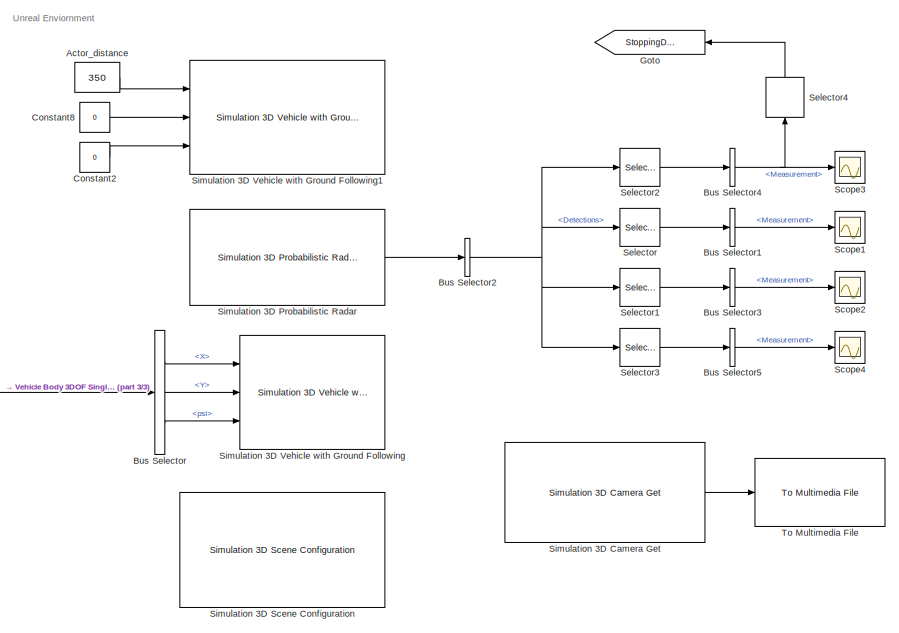
[diagram: root canvas - part 1/3, right side, full height]
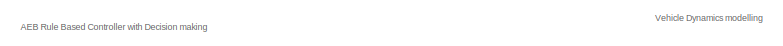
[diagram: root canvas - part 2/3, top left region]
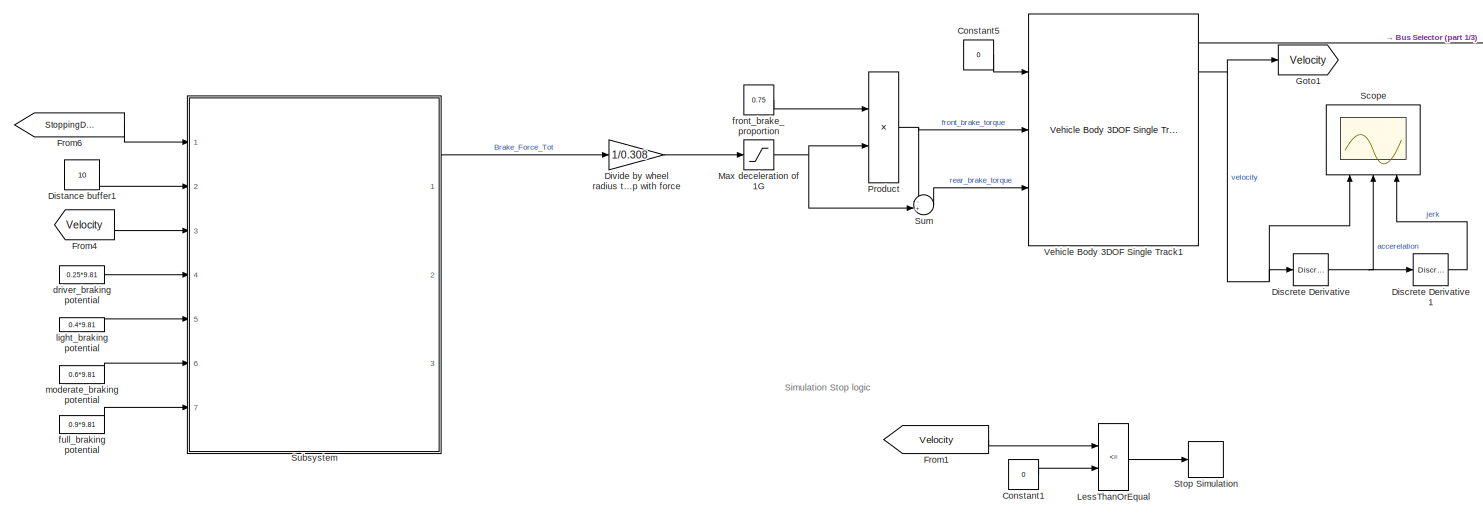
[diagram: root canvas - part 3/3, center side, full height]
MODEL slx_f537fb9c1e2f
KIND model
CONFIG AbsTol = auto
CONFIG EnableMultiTasking = off
CONFIG FixedStep = simtime
CONFIG InitFcn = clear all \n\n% These are the starting values \ninitial_stopping_distance = 350; % set the stopping distance in m (6.368 and 11 is max deccel -9.5)\ninitial_velocity = 37.77; % set the initial velocity in m/s\nroad_grade = 0; %set road grade in degrees\nsampletime = 0.01; %set the sample time of the controller \nTs = sampletime;\nsimtime = sampletime; %simulation set\n\ninitialdeccelcalc = -(initial_velocit...<+35ch>
CONFIG MaxStep = auto
CONFIG MinStep = auto
CONFIG RelTol = 1e-3
CONFIG SampleTimeConstraint = Unconstrained
CONFIG SolverName = ode4
CONFIG StartTime = 0.0
CONFIG StopTime = 20
BLOCK [Constant] Actor_distance
  NameLocation = top
  Value = 350
BLOCK [BusSelector] Bus Selector
  OutputSignals = InertFrm.Cg.Disp.X,InertFrm.Cg.Disp.Y,InertFrm.Cg.Ang.psi
  Ports = [1, 3]
BLOCK [BusSelector] Bus Selector1
  OutputSignals = Measurement
  Ports = [1, 1]
BLOCK [BusSelector] Bus Selector2
  OutputSignals = Detections
  Ports = [1, 1]
BLOCK [BusSelector] Bus Selector3
  OutputSignals = Measurement
  Ports = [1, 1]
BLOCK [BusSelector] Bus Selector4
  OutputSignals = Measurement
  Ports = [1, 1]
BLOCK [BusSelector] Bus Selector5
  OutputSignals = Measurement
  Ports = [1, 1]
BLOCK [Constant] Constant1
  Value = 0
BLOCK [Constant] Constant2
  Value = 0
BLOCK [Constant] Constant5
  Value = 0
BLOCK [Constant] Constant8
  Value = 0
BLOCK [Reference] Discrete Derivative  REF=simulink/Discrete/Discrete Derivative
  Ports = [1, 1]
  SourceBlock = simulink/Discrete/Discrete Derivative
  SourceProductBaseCode = SL
  SourceType = Discrete Derivative
BLOCK [Reference] Discrete Derivative1  REF=simulink/Discrete/Discrete Derivative
  Ports = [1, 1]
  SourceBlock = simulink/Discrete/Discrete Derivative
  SourceProductBaseCode = SL
  SourceType = Discrete Derivative
BLOCK [Constant] Distance buffer1
  NameLocation = left
  Value = 10
BLOCK [Gain] Divide by wheel radius to come up with force
  Gain = 1/0.308
BLOCK [From] From1
  GotoTag = Velocity
  TagVisibility = global
BLOCK [From] From4
  GotoTag = Velocity
  TagVisibility = global
BLOCK [From] From6
  GotoTag = StoppingDistance
BLOCK [Goto] Goto
  GotoTag = StoppingDistance
  NameLocation = top
BLOCK [Goto] Goto1
  GotoTag = Velocity
  TagVisibility = global
BLOCK [RelationalOperator] LessThanOrEqual
  InputSameDT = off
  Operator = <=
  OutDataTypeStr = boolean
  Ports = [2, 1]
  RndMeth = Simplest
BLOCK [Saturate] Max deceleration of 1G
  LowerLimit = -1605*10
  UpperLimit = 0
BLOCK [Product] Product
  Ports = [2, 1]
BLOCK [Scope] Scope
  Floating = off
  NameLocation = right
  NumInputPorts = 3
  Ports = [3]
  ScopeSpecificationString = Simulink.scopes.TimeScopeBlockCfg('CurrentConfiguration', extmgr.ConfigurationSet(extmgr.Configuration('Core','General UI',true),extmgr.Configuration('Core','Source UI',true),extmgr.Configuration('Sources','WiredSimulink',true),extmgr.Configuration('Visuals','Time Domain',true,'SerializedDisplays',{struct('MinYLimReal','-67.06002','MaxYLimReal','57.03874','YLabelReal','','MinYLimMag','0.00000','Ma...<+1425ch>
BLOCK [Scope] Scope1
  Floating = off
  NumInputPorts = 1
  Ports = [1]
  ScopeSpecificationString = Simulink.scopes.TimeScopeBlockCfg('CurrentConfiguration', extmgr.ConfigurationSet(extmgr.Configuration('Core','General UI',true),extmgr.Configuration('Core','Source UI',true),extmgr.Configuration('Sources','WiredSimulink',true,'DataLoggingVariableName','ScopeData1'),extmgr.Configuration('Visuals','Time Domain',true,'SerializedDisplays',{struct('MinYLimReal','-1.00000','MaxYLimReal','1.00000','YLab...<+1462ch>
BLOCK [Scope] Scope2
  Floating = off
  NumInputPorts = 1
  Ports = [1]
  ScopeSpecificationString = Simulink.scopes.TimeScopeBlockCfg('CurrentConfiguration', extmgr.ConfigurationSet(extmgr.Configuration('Core','General UI',true),extmgr.Configuration('Core','Source UI',true),extmgr.Configuration('Sources','WiredSimulink',true,'DataLoggingVariableName','ScopeData2'),extmgr.Configuration('Visuals','Time Domain',true,'SerializedDisplays',{struct('MinYLimReal','-2.09226','MaxYLimReal','9.54865','YLab...<+1462ch>
BLOCK [Scope] Scope3
  Floating = off
  NumInputPorts = 1
  Ports = [1]
  ScopeSpecificationString = Simulink.scopes.TimeScopeBlockCfg('CurrentConfiguration', extmgr.ConfigurationSet(extmgr.Configuration('Core','General UI',true),extmgr.Configuration('Core','Source UI',true),extmgr.Configuration('Sources','WiredSimulink',true,'DataLoggingVariableName','ScopeData3'),extmgr.Configuration('Visuals','Time Domain',true,'SerializedDisplays',{struct('MinYLimReal','-38.52119','MaxYLimReal','337.37943','Y...<+1491ch>
BLOCK [Scope] Scope4
  Floating = off
  NumInputPorts = 1
  Ports = [1]
  ScopeSpecificationString = Simulink.scopes.TimeScopeBlockCfg('CurrentConfiguration', extmgr.ConfigurationSet(extmgr.Configuration('Core','General UI',true),extmgr.Configuration('Core','Source UI',true),extmgr.Configuration('Sources','WiredSimulink',true,'DataLoggingVariableName','ScopeData4'),extmgr.Configuration('Visuals','Time Domain',true,'SerializedDisplays',{struct('MinYLimReal','-1.00000','MaxYLimReal','1.00000','YLab...<+1462ch>
BLOCK [Selector] Selector
  IndexOptions = Index vector (dialog)
  Indices = [3]
  InputPortWidth = 10
  OutputSizes = 1
  Ports = [1, 1]
BLOCK [Selector] Selector1
  IndexOptions = Index vector (dialog)
  Indices = [5]
  InputPortWidth = 10
  OutputSizes = 1
  Ports = [1, 1]
BLOCK [Selector] Selector2
  IndexOptions = Index vector (dialog)
  Indices = [1]
  InputPortWidth = 10
  OutputSizes = 1
  Ports = [1, 1]
BLOCK [Selector] Selector3
  IndexOptions = Index vector (dialog)
  Indices = [7]
  InputPortWidth = 10
  OutputSizes = 1
  Ports = [1, 1]
BLOCK [Selector] Selector4
  IndexOptions = Index vector (dialog)
  Indices = [1]
  InputPortWidth = 3
  NameLocation = right
  OutputSizes = 1
  Ports = [1, 1]
BLOCK [Reference] Simulation 3D Camera Get  REF=sim3dlib/Simulation 3D Camera Get
  Ports = [0, 1]
  Priority = 1
  SourceBlock = sim3dlib/Simulation 3D Camera Get
  SourceProductBaseCode = AE,DR,UV,VE
  SourceType = Simulation 3D Camera Get
BLOCK [Reference] Simulation 3D Probabilistic Radar  REF=sim3dprobsensorlib/Simulation 3D Probabilistic Radar
  Ports = [0, 1]
  Priority = 1
  SourceBlock = sim3dprobsensorlib/Simulation 3D Probabilistic Radar
  SourceProductBaseCode = AE,DR,UV,VE
  SourceType = Simulation 3D Probabilistic Radar
BLOCK [Reference] Simulation 3D Scene Configuration  REF=sim3dlib/Simulation 3D Scene Configuration
  Ports = []
  Priority = 0
  SourceBlock = sim3dlib/Simulation 3D Scene Configuration
  SourceProductBaseCode = AE,DR,UV,VE
  SourceType = Simulation 3D Scene Configuration
BLOCK [Reference] Simulation 3D Vehicle with Ground Following  REF=vdynlib/Vehicle Scenarios/Sim3D/Sim3D Vehicle/Components/Simulation 3D Vehicle with Ground Following
  Ports = [3]
  Priority = -1
  SourceBlock = vdynlib/Vehicle Scenarios/Sim3D/Sim3D Vehicle/Components/Simulation 3D Vehicle with Ground Following
  SourceProductBaseCode = VE
  SourceType = Simulation 3D Vehicle with Ground Following
BLOCK [Reference] Simulation 3D Vehicle with Ground Following1  REF=vdynlib/Vehicle Scenarios/Sim3D/Sim3D Vehicle/Components/Simulation 3D Vehicle with Ground Following
  Ports = [3]
  Priority = -1
  SourceBlock = vdynlib/Vehicle Scenarios/Sim3D/Sim3D Vehicle/Components/Simulation 3D Vehicle with Ground Following
  SourceProductBaseCode = VE
  SourceType = Simulation 3D Vehicle with Ground Following
BLOCK [Stop] Stop Simulation
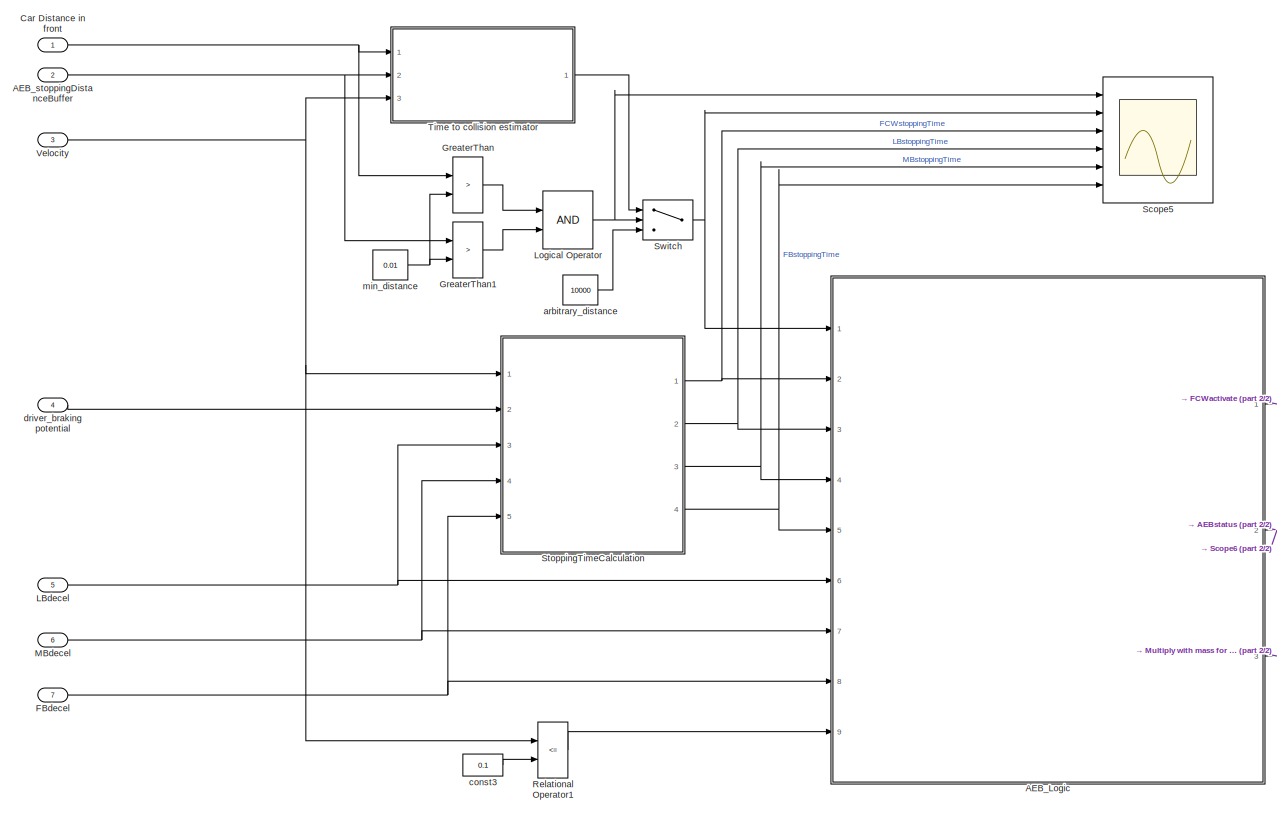
[diagram: Subsystem - part 1/2, most of the canvas]
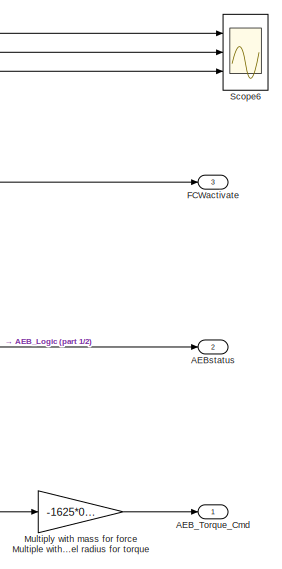
[diagram: Subsystem - part 2/2, middle right region]
BLOCK [SubSystem] Subsystem
  Ports = [7, 3]
  RequestExecContextInheritance = off
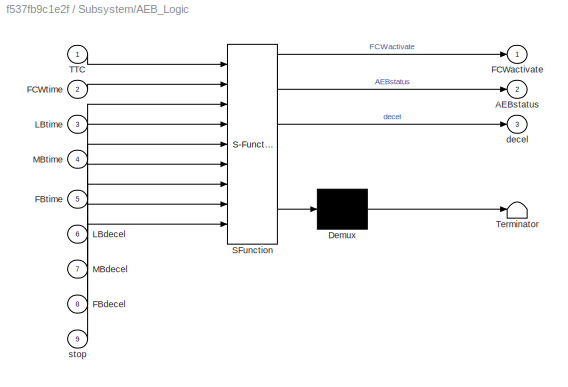
BLOCK [SubSystem] Subsystem/AEB_Logic
  ErrorFcn = Stateflow.Translate.translate
  PermitHierarchicalResolution = ExplicitOnly
  Ports = [9, 3]
  RequestExecContextInheritance = off
  SFBlockType = Chart
  TreatAsAtomicUnit = on
BLOCK [Demux] Subsystem/AEB_Logic/ Demux 
  Outputs = 1
  Ports = [1, 1]
BLOCK [S-Function] Subsystem/AEB_Logic/ SFunction 
  EnableBusSupport = on
  FunctionName = sf_sfun
  PortCounts = [9 4]
  Ports = [9, 4]
  SFcnIsStateOwnerBlock = off
  SFunctionDeploymentMode = off
  Tag = Stateflow S-Function 5
BLOCK [Terminator] Subsystem/AEB_Logic/ Terminator 
BLOCK [Outport] Subsystem/AEB_Logic/AEBstatus
  Port = 2
  VectorParamsAs1DForOutWhenUnconnected = off
BLOCK [Inport] Subsystem/AEB_Logic/FBdecel
  Port = 8
BLOCK [Inport] Subsystem/AEB_Logic/FBtime
  Port = 5
BLOCK [Outport] Subsystem/AEB_Logic/FCWactivate
  VectorParamsAs1DForOutWhenUnconnected = off
BLOCK [Inport] Subsystem/AEB_Logic/FCWtime
  Port = 2
BLOCK [Inport] Subsystem/AEB_Logic/LBdecel
  Port = 6
BLOCK [Inport] Subsystem/AEB_Logic/LBtime
  Port = 3
BLOCK [Inport] Subsystem/AEB_Logic/MBdecel
  Port = 7
BLOCK [Inport] Subsystem/AEB_Logic/MBtime
  Port = 4
BLOCK [Inport] Subsystem/AEB_Logic/TTC
BLOCK [Outport] Subsystem/AEB_Logic/decel
  Port = 3
  VectorParamsAs1DForOutWhenUnconnected = off
BLOCK [Inport] Subsystem/AEB_Logic/stop
  Port = 9
BLOCK [Outport] Subsystem/AEB_Torque_Cmd
BLOCK [Inport] Subsystem/AEB_stoppingDistanceBuffer
  NameLocation = left
  Port = 2
BLOCK [Outport] Subsystem/AEBstatus
  Port = 2
BLOCK [Inport] Subsystem/Car Distance in front
  NameLocation = left
BLOCK [Inport] Subsystem/FBdecel
  Port = 7
BLOCK [Outport] Subsystem/FCWactivate
  Port = 3
BLOCK [RelationalOperator] Subsystem/GreaterThan
  InputSameDT = off
  Operator = >
  OutDataTypeStr = boolean
  Ports = [2, 1]
  RndMeth = Simplest
BLOCK [RelationalOperator] Subsystem/GreaterThan1
  InputSameDT = off
  Operator = >
  OutDataTypeStr = boolean
  Ports = [2, 1]
  RndMeth = Simplest
BLOCK [Inport] Subsystem/LBdecel
  Port = 5
BLOCK [Logic] Subsystem/Logical Operator
  AllPortsSameDT = off
  IconShape = distinctive
  OutDataTypeStr = boolean
  Ports = [2, 1]
BLOCK [Inport] Subsystem/MBdecel
  Port = 6
BLOCK [Gain] Subsystem/Multiply with mass for force Multiple with wheel radius for torque
  Gain = -1625*0.308
BLOCK [RelationalOperator] Subsystem/Relational Operator1
  InputSameDT = off
  Operator = <=
  OutDataTypeStr = boolean
  Ports = [2, 1]
  RndMeth = Simplest
BLOCK [Scope] Subsystem/Scope5
  Floating = off
  NumInputPorts = 6
  Ports = [6]
  ScopeSpecificationString = Simulink.scopes.TimeScopeBlockCfg('CurrentConfiguration', extmgr.ConfigurationSet(extmgr.Configuration('Core','General UI',true),extmgr.Configuration('Core','Source UI',true),extmgr.Configuration('Sources','WiredSimulink',true,'DataLoggingVariableName','ScopeData1'),extmgr.Configuration('Visuals','Time Domain',true,'SerializedDisplays',{struct('MinYLimReal','-4.64607','MaxYLimReal','15.34078','YLa...<+1526ch>
BLOCK [Scope] Subsystem/Scope6
  Floating = off
  NumInputPorts = 3
  Ports = [3]
  ScopeSpecificationString = Simulink.scopes.TimeScopeBlockCfg('CurrentConfiguration', extmgr.ConfigurationSet(extmgr.Configuration('Core','General UI',true),extmgr.Configuration('Core','Source UI',true),extmgr.Configuration('Sources','WiredSimulink',true,'DataLoggingVariableName','ScopeData3'),extmgr.Configuration('Visuals','Time Domain',true,'SerializedDisplays',{struct('MinYLimReal','-0.4905','MaxYLimReal','4.4145','YLabel...<+1464ch>
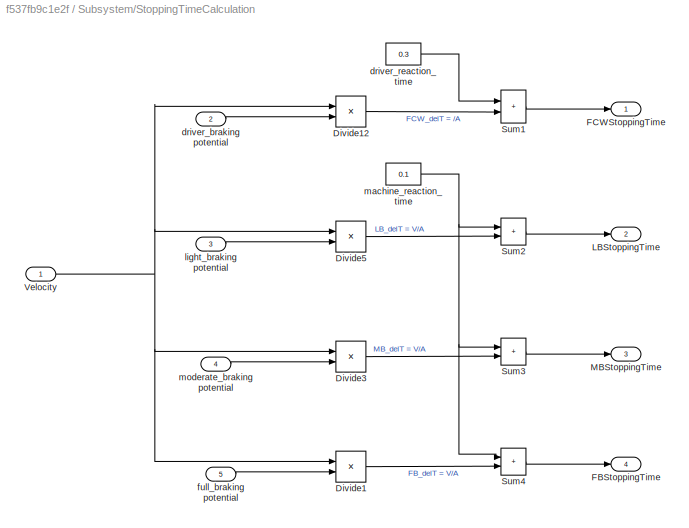
BLOCK [SubSystem] Subsystem/StoppingTimeCalculation
  Ports = [5, 4]
  RequestExecContextInheritance = off
BLOCK [Product] Subsystem/StoppingTimeCalculation/Divide1
  Inputs = */
  Ports = [2, 1]
BLOCK [Product] Subsystem/StoppingTimeCalculation/Divide12
  Inputs = */
  Ports = [2, 1]
BLOCK [Product] Subsystem/StoppingTimeCalculation/Divide3
  Inputs = */
  Ports = [2, 1]
BLOCK [Product] Subsystem/StoppingTimeCalculation/Divide5
  Inputs = */
  Ports = [2, 1]
BLOCK [Outport] Subsystem/StoppingTimeCalculation/FBStoppingTime
  Port = 4
  VectorParamsAs1DForOutWhenUnconnected = off
BLOCK [Outport] Subsystem/StoppingTimeCalculation/FCWStoppingTime
  VectorParamsAs1DForOutWhenUnconnected = off
BLOCK [Outport] Subsystem/StoppingTimeCalculation/LBStoppingTime
  Port = 2
  VectorParamsAs1DForOutWhenUnconnected = off
BLOCK [Outport] Subsystem/StoppingTimeCalculation/MBStoppingTime
  Port = 3
  VectorParamsAs1DForOutWhenUnconnected = off
BLOCK [Sum] Subsystem/StoppingTimeCalculation/Sum1
  IconShape = rectangular
  Ports = [2, 1]
BLOCK [Sum] Subsystem/StoppingTimeCalculation/Sum2
  IconShape = rectangular
  Ports = [2, 1]
BLOCK [Sum] Subsystem/StoppingTimeCalculation/Sum3
  IconShape = rectangular
  Ports = [2, 1]
BLOCK [Sum] Subsystem/StoppingTimeCalculation/Sum4
  IconShape = rectangular
  Ports = [2, 1]
BLOCK [Inport] Subsystem/StoppingTimeCalculation/Velocity
BLOCK [Inport] Subsystem/StoppingTimeCalculation/driver_braking potential
  Port = 2
BLOCK [Constant] Subsystem/StoppingTimeCalculation/driver_reaction_time
  SampleTime = -1
  Value = 0.3
BLOCK [Inport] Subsystem/StoppingTimeCalculation/full_braking potential
  Port = 5
BLOCK [Inport] Subsystem/StoppingTimeCalculation/light_braking potential
  Port = 3
BLOCK [Constant] Subsystem/StoppingTimeCalculation/machine_reaction_time
  SampleTime = -1
  Value = 0.1
BLOCK [Inport] Subsystem/StoppingTimeCalculation/moderate_braking potential
  Port = 4
BLOCK [Switch] Subsystem/Switch
  Criteria = u2 > Threshold
  InputSameDT = off
  SaturateOnIntegerOverflow = off
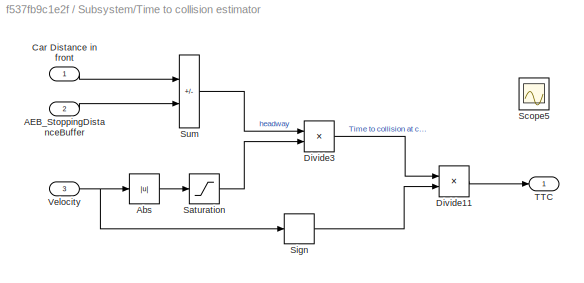
BLOCK [SubSystem] Subsystem/Time to collision estimator
  Ports = [3, 1]
  RequestExecContextInheritance = off
BLOCK [Inport] Subsystem/Time to collision estimator/AEB_StoppingDistanceBuffer
  Port = 2
BLOCK [Abs] Subsystem/Time to collision estimator/Abs
  SaturateOnIntegerOverflow = off
BLOCK [Inport] Subsystem/Time to collision estimator/Car Distance in front
  NameLocation = top
BLOCK [Product] Subsystem/Time to collision estimator/Divide11
  Inputs = **
  Ports = [2, 1]
BLOCK [Product] Subsystem/Time to collision estimator/Divide3
  Inputs = */
  Ports = [2, 1]
BLOCK [Saturate] Subsystem/Time to collision estimator/Saturation
  LowerLimit = 0.01
  UpperLimit = 400
BLOCK [Scope] Subsystem/Time to collision estimator/Scope5
  Floating = off
  NumInputPorts = 1
  Ports = [1]
  ScopeSpecificationString = Simulink.scopes.TimeScopeBlockCfg('CurrentConfiguration', extmgr.ConfigurationSet(extmgr.Configuration('Core','General UI',true),extmgr.Configuration('Core','Source UI',true),extmgr.Configuration('Sources','WiredSimulink',true,'DataLoggingVariableName','ScopeData2'),extmgr.Configuration('Visuals','Time Domain',true),extmgr.Configuration('Tools','Plot Navigation',true),extmgr.Configuration('Tools',...<+40ch>
BLOCK [Signum] Subsystem/Time to collision estimator/Sign
BLOCK [Sum] Subsystem/Time to collision estimator/Sum
  IconShape = rectangular
  Inputs = +-
  Ports = [2, 1]
BLOCK [Outport] Subsystem/Time to collision estimator/TTC
  VectorParamsAs1DForOutWhenUnconnected = off
BLOCK [Inport] Subsystem/Time to collision estimator/Velocity
  Port = 3
BLOCK [Inport] Subsystem/Velocity
  Port = 3
BLOCK [Constant] Subsystem/arbitrary_distance
  Value = 10000
BLOCK [Constant] Subsystem/const3
  SampleTime = -1
  Value = 0.1
BLOCK [Inport] Subsystem/driver_braking potential
  Port = 4
BLOCK [Constant] Subsystem/min_distance
  Value = 0.01
BLOCK [Sum] Sum
  Inputs = -+|
  Ports = [2, 1]
BLOCK [Reference] To Multimedia File  REF=dspvision/To Multimedia File
  Ports = [1]
  SourceBlock = dspvision/To Multimedia File
  SourceProductBaseCode = DS,HW,VP
  SourceType = To Multimedia File
BLOCK [Reference] Vehicle Body 3DOF Single Track1  REF=autolibshared/Vehicle Body 3DOF Single Track
  Ports = [3, 7]
  SourceBlock = autolibshared/Vehicle Body 3DOF Single Track
  SourceProductBaseCode = PW,DR,MT,UV,VE
  SourceType = Vehicle Body 3DOF Lateral
BLOCK [Constant] driver_braking potential
  NameLocation = left
  SampleTime = -1
  Value = 0.25*9.81
BLOCK [Constant] front_brake_proportion
  Value = 0.75
BLOCK [Constant] full_braking potential
  NameLocation = left
  SampleTime = -1
  Value = 0.9*9.81
BLOCK [Constant] light_braking potential
  NameLocation = left
  SampleTime = -1
  Value = 0.4*9.81
BLOCK [Constant] moderate_braking potential
  NameLocation = left
  SampleTime = -1
  Value = 0.6*9.81
ANNOTATION (root): AEB Rule Based Controller with Decision making
ANNOTATION (root): Simulation Stop logic
ANNOTATION (root): Unreal Enviornment
ANNOTATION (root): Vehicle Dynamics modelling
LINE Actor_distance:1 -> Simulation 3D Vehicle with Ground Following1:1
LINE Bus Selector1:1 -> Scope1:1
NET Bus Selector2:1 -> Selector1:1, Selector2:1, Selector3:1, Selector:1
LINE Bus Selector3:1 -> Scope2:1
NET Bus Selector4:1 -> Scope3:1, Selector4:1
LINE Bus Selector5:1 -> Scope4:1
LINE Bus Selector:1 -> Simulation 3D Vehicle with Ground Following:1
LINE Bus Selector:2 -> Simulation 3D Vehicle with Ground Following:2
LINE Bus Selector:3 -> Simulation 3D Vehicle with Ground Following:3
LINE Constant1:1 -> LessThanOrEqual:2
LINE Constant2:1 -> Simulation 3D Vehicle with Ground Following1:3
LINE Constant5:1 -> Vehicle Body 3DOF Single Track1:1
LINE Constant8:1 -> Simulation 3D Vehicle with Ground Following1:2
LINE Discrete Derivative1:1 -> Scope:3
NET Discrete Derivative:1 -> Discrete Derivative1:1, Scope:2
LINE Distance buffer1:1 -> Subsystem:2
LINE Divide by wheel radius to come up with force:1 -> Max deceleration of 1G:1
LINE From1:1 -> LessThanOrEqual:1
LINE From4:1 -> Subsystem:3
LINE From6:1 -> Subsystem:1
LINE LessThanOrEqual:1 -> Stop Simulation:1
NET Max deceleration of 1G:1 -> Product:2, Sum:2
NET Product:1 -> Sum:1, Vehicle Body 3DOF Single Track1:2
LINE Selector1:1 -> Bus Selector3:1
LINE Selector2:1 -> Bus Selector4:1
LINE Selector3:1 -> Bus Selector5:1
LINE Selector4:1 -> Goto:1
LINE Selector:1 -> Bus Selector1:1
LINE Simulation 3D Camera Get:1 -> To Multimedia File:1
LINE Simulation 3D Probabilistic Radar:1 -> Bus Selector2:1
NET Subsystem/AEB_Logic:1 -> Subsystem/FCWactivate:1, Subsystem/Scope6:1
NET Subsystem/AEB_Logic:2 -> Subsystem/AEBstatus:1, Subsystem/Scope6:2
NET Subsystem/AEB_Logic:3 -> Subsystem/Multiply with mass for force Multiple with wheel radius for torque:1, Subsystem/Scope6:3
NET Subsystem/AEB_stoppingDistanceBuffer:1 -> Subsystem/GreaterThan1:1, Subsystem/Time to collision estimator:2
NET Subsystem/Car Distance in front:1 -> Subsystem/GreaterThan:1, Subsystem/Time to collision estimator:1
NET Subsystem/FBdecel:1 -> Subsystem/AEB_Logic:8, Subsystem/StoppingTimeCalculation:5
LINE Subsystem/GreaterThan1:1 -> Subsystem/Logical Operator:2
LINE Subsystem/GreaterThan:1 -> Subsystem/Logical Operator:1
NET Subsystem/LBdecel:1 -> Subsystem/AEB_Logic:6, Subsystem/StoppingTimeCalculation:3
NET Subsystem/Logical Operator:1 -> Subsystem/Scope5:1, Subsystem/Switch:2
NET Subsystem/MBdecel:1 -> Subsystem/AEB_Logic:7, Subsystem/StoppingTimeCalculation:4
LINE Subsystem/Multiply with mass for force Multiple with wheel radius for torque:1 -> Subsystem/AEB_Torque_Cmd:1
LINE Subsystem/Relational Operator1:1 -> Subsystem/AEB_Logic:9
LINE Subsystem/StoppingTimeCalculation/Divide12:1 -> Subsystem/StoppingTimeCalculation/Sum1:2
LINE Subsystem/StoppingTimeCalculation/Divide1:1 -> Subsystem/StoppingTimeCalculation/Sum4:2
LINE Subsystem/StoppingTimeCalculation/Divide3:1 -> Subsystem/StoppingTimeCalculation/Sum3:2
LINE Subsystem/StoppingTimeCalculation/Divide5:1 -> Subsystem/StoppingTimeCalculation/Sum2:2
LINE Subsystem/StoppingTimeCalculation/Sum1:1 -> Subsystem/StoppingTimeCalculation/FCWStoppingTime:1
LINE Subsystem/StoppingTimeCalculation/Sum2:1 -> Subsystem/StoppingTimeCalculation/LBStoppingTime:1
LINE Subsystem/StoppingTimeCalculation/Sum3:1 -> Subsystem/StoppingTimeCalculation/MBStoppingTime:1
LINE Subsystem/StoppingTimeCalculation/Sum4:1 -> Subsystem/StoppingTimeCalculation/FBStoppingTime:1
NET Subsystem/StoppingTimeCalculation/Velocity:1 -> Subsystem/StoppingTimeCalculation/Divide12:1, Subsystem/StoppingTimeCalculation/Divide1:1, Subsystem/StoppingTimeCalculation/Divide3:1, Subsystem/StoppingTimeCalculation/Divide5:1
LINE Subsystem/StoppingTimeCalculation/driver_braking potential:1 -> Subsystem/StoppingTimeCalculation/Divide12:2
LINE Subsystem/StoppingTimeCalculation/driver_reaction_time:1 -> Subsystem/StoppingTimeCalculation/Sum1:1
LINE Subsystem/StoppingTimeCalculation/full_braking potential:1 -> Subsystem/StoppingTimeCalculation/Divide1:2
LINE Subsystem/StoppingTimeCalculation/light_braking potential:1 -> Subsystem/StoppingTimeCalculation/Divide5:2
NET Subsystem/StoppingTimeCalculation/machine_reaction_time:1 -> Subsystem/StoppingTimeCalculation/Sum2:1, Subsystem/StoppingTimeCalculation/Sum3:1, Subsystem/StoppingTimeCalculation/Sum4:1
LINE Subsystem/StoppingTimeCalculation/moderate_braking potential:1 -> Subsystem/StoppingTimeCalculation/Divide3:2
NET Subsystem/StoppingTimeCalculation:1 -> Subsystem/AEB_Logic:2, Subsystem/Scope5:3
NET Subsystem/StoppingTimeCalculation:2 -> Subsystem/AEB_Logic:3, Subsystem/Scope5:4
NET Subsystem/StoppingTimeCalculation:3 -> Subsystem/AEB_Logic:4, Subsystem/Scope5:5
NET Subsystem/StoppingTimeCalculation:4 -> Subsystem/AEB_Logic:5, Subsystem/Scope5:6
NET Subsystem/Switch:1 -> Subsystem/AEB_Logic:1, Subsystem/Scope5:2
LINE Subsystem/Time to collision estimator/AEB_StoppingDistanceBuffer:1 -> Subsystem/Time to collision estimator/Sum:2
LINE Subsystem/Time to collision estimator/Abs:1 -> Subsystem/Time to collision estimator/Saturation:1
LINE Subsystem/Time to collision estimator/Car Distance in front:1 -> Subsystem/Time to collision estimator/Sum:1
LINE Subsystem/Time to collision estimator/Divide11:1 -> Subsystem/Time to collision estimator/TTC:1
LINE Subsystem/Time to collision estimator/Divide3:1 -> Subsystem/Time to collision estimator/Divide11:1
LINE Subsystem/Time to collision estimator/Saturation:1 -> Subsystem/Time to collision estimator/Divide3:2
LINE Subsystem/Time to collision estimator/Sign:1 -> Subsystem/Time to collision estimator/Divide11:2
LINE Subsystem/Time to collision estimator/Sum:1 -> Subsystem/Time to collision estimator/Divide3:1
NET Subsystem/Time to collision estimator/Velocity:1 -> Subsystem/Time to collision estimator/Abs:1, Subsystem/Time to collision estimator/Sign:1
LINE Subsystem/Time to collision estimator:1 -> Subsystem/Switch:1
NET Subsystem/Velocity:1 -> Subsystem/Relational Operator1:1, Subsystem/StoppingTimeCalculation:1, Subsystem/Time to collision estimator:3
LINE Subsystem/arbitrary_distance:1 -> Subsystem/Switch:3
LINE Subsystem/const3:1 -> Subsystem/Relational Operator1:2
LINE Subsystem/driver_braking potential:1 -> Subsystem/StoppingTimeCalculation:2
NET Subsystem/min_distance:1 -> Subsystem/GreaterThan1:2, Subsystem/GreaterThan:2
LINE Subsystem:1 -> Divide by wheel radius to come up with force:1
LINE Sum:1 -> Vehicle Body 3DOF Single Track1:3
LINE Vehicle Body 3DOF Single Track1:1 -> Bus Selector:1
NET Vehicle Body 3DOF Single Track1:2 -> Discrete Derivative:1, Goto1:1, Scope:1
LINE driver_braking potential:1 -> Subsystem:4
LINE front_brake_proportion:1 -> Product:1
LINE full_braking potential:1 -> Subsystem:7
LINE light_braking potential:1 -> Subsystem:5
LINE moderate_braking potential:1 -> Subsystem:6
note: NET lines group one-source signal fan-out (src -> all destinations, sorted); 1:1 wires keep LINE
CHART Subsystem/AEB_Logic states=6 transitions=12
  STATE_LABEL 'FCW/AEB Logic'
  STATE_LABEL 'Default\nentry: AEBstatus = 0;\n FCWactivate = 0;\n decel = 0;\n'
  STATE_LABEL 'FCW\nentry: AEBstatus = 0;\n FCWactivate = 1;\n decel = 0;\n'
  STATE_LABEL 'Light_braking\nentry: AEBstatus = 1;\n FCWactivate = 1;\n decel = LBdecel;\n'
  STATE_LABEL 'Full_Braking\nentry: AEBstatus = 3;\n FCWactivate = 1;\n decel = FBdecel;\n'
  STATE_LABEL 'Moderate_Braking\nentry: AEBstatus = 2;\n FCWactivate = 1;\n decel = MBdecel;\n'
CHART  states=0 transitions=0
